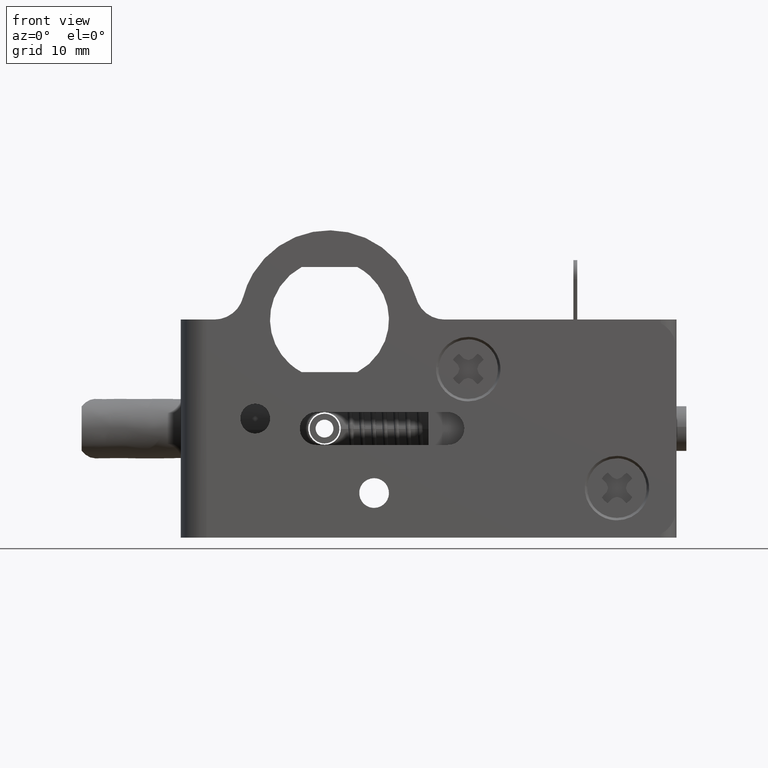
[diagram: clean part render]
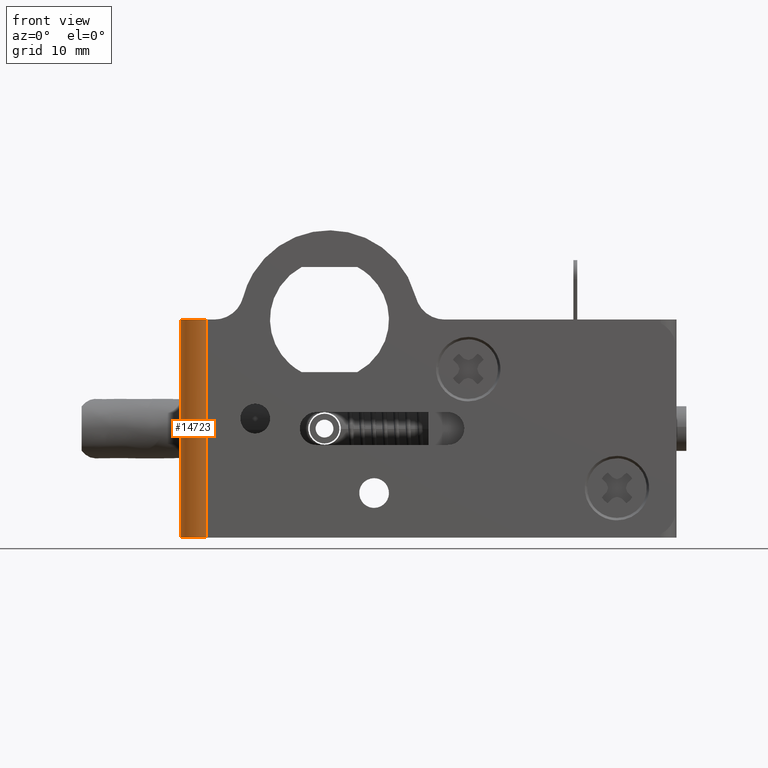
[diagram: same view with one face highlighted and labeled with its STEP entity id]
A machine part, front view. The second image highlights one B-rep face of the part: STEP entity #14723.
In plain terms, the highlighted face is a freeform B-spline surface patch.
Its self-contained STEP definition (entity closure, byte-faithful):
#14663=CARTESIAN_POINT('',(-12.377303007704230,0.000099000033090,-22.550000000000001));
#14664=CARTESIAN_POINT('',(-12.377303007704230,0.000099000033090,0.563750000000002));
#14665=CARTESIAN_POINT('',(-15.165355489230551,-0.024231965366885,-22.550000000000001));
#14666=CARTESIAN_POINT('',(-15.165355489230551,-0.024231965366885,0.563750000000002));
#14667=CARTESIAN_POINT('',(-14.995142475896850,2.758726202790562,-22.550000000000001));
#14668=CARTESIAN_POINT('',(-14.995142475896850,2.758726202790562,0.563750000000002));
#14676=(BOUNDED_SURFACE()B_SPLINE_SURFACE(1,2,((#14663,#14665,#14667),(#14664,#14666,#14668)),.UNSPECIFIED.,.F.,.F.,.U.)B_SPLINE_SURFACE_WITH_KNOTS((2,2),(3,3),(0.0,23.113750000000010),(0.0,4.522048699593703),.UNSPECIFIED.)GEOMETRIC_REPRESENTATION_ITEM()RATIONAL_B_SPLINE_SURFACE(((1.0,0.681998360062499,1.0),(1.0,0.681998360062499,1.0)))REPRESENTATION_ITEM('')SURFACE());
#14677=CARTESIAN_POINT('',(-12.399991999999999,-2.842171E-014,-22.0));
#14678=VERTEX_POINT('',#14677);
#14679=CARTESIAN_POINT('',(-14.999992000000001,2.599999999999935,-22.0));
#14680=VERTEX_POINT('',#14679);
#14681=CARTESIAN_POINT('',(-12.399991999999999,-6.505213E-014,-22.0));
#14682=CARTESIAN_POINT('',(-14.999991999999995,-6.505213E-014,-22.000000000000007));
#14683=CARTESIAN_POINT('',(-14.999992000000001,2.599999999999935,-22.0));
#14691=(BOUNDED_CURVE()B_SPLINE_CURVE(2,(#14681,#14682,#14683),.UNSPECIFIED.,.F.,.U.)CURVE()GEOMETRIC_REPRESENTATION_ITEM()QUASI_UNIFORM_CURVE()RATIONAL_B_SPLINE_CURVE((1.0,0.707106781186548,1.0))REPRESENTATION_ITEM(''));
#14692=EDGE_CURVE('',#14678,#14680,#14691,.T.);
#14693=ORIENTED_EDGE('',*,*,#14692,.F.);
#14694=CARTESIAN_POINT('',(-12.399991999999999,-2.842171E-014,0.0));
#14695=VERTEX_POINT('',#14694);
#14696=CARTESIAN_POINT('',(-12.399991999999999,-2.842171E-014,0.0));
#14697=CARTESIAN_POINT('',(-12.399991999999999,-2.842171E-014,-22.0));
#14698=QUASI_UNIFORM_CURVE('',1,(#14696,#14697),.UNSPECIFIED.,.F.,.U.);
#14699=EDGE_CURVE('',#14695,#14678,#14698,.T.);
#14700=ORIENTED_EDGE('',*,*,#14699,.F.);
#14701=CARTESIAN_POINT('',(-14.999992000000001,2.599999999999935,0.0));
#14702=VERTEX_POINT('',#14701);
#14703=CARTESIAN_POINT('',(-14.999992000000001,2.599999999999935,0.0));
#14704=CARTESIAN_POINT('',(-14.999991999999995,-6.505213E-014,0.0));
#14705=CARTESIAN_POINT('',(-12.399991999999999,-6.505213E-014,0.0));
#14713=(BOUNDED_CURVE()B_SPLINE_CURVE(2,(#14703,#14704,#14705),.UNSPECIFIED.,.F.,.U.)CURVE()GEOMETRIC_REPRESENTATION_ITEM()QUASI_UNIFORM_CURVE()RATIONAL_B_SPLINE_CURVE((1.0,0.707106781186548,1.0))REPRESENTATION_ITEM(''));
#14714=EDGE_CURVE('',#14702,#14695,#14713,.T.);
#14715=ORIENTED_EDGE('',*,*,#14714,.F.);
#14716=CARTESIAN_POINT('',(-14.999992000000001,2.599999999999935,-22.0));
#14717=CARTESIAN_POINT('',(-14.999992000000001,2.599999999999935,0.0));
#14718=QUASI_UNIFORM_CURVE('',1,(#14716,#14717),.UNSPECIFIED.,.F.,.U.);
#14719=EDGE_CURVE('',#14680,#14702,#14718,.T.);
#14720=ORIENTED_EDGE('',*,*,#14719,.F.);
#14721=EDGE_LOOP('',(#14693,#14700,#14715,#14720));
#14722=FACE_OUTER_BOUND('',#14721,.T.);
#14723=ADVANCED_FACE('',(#14722),#14676,.T.);